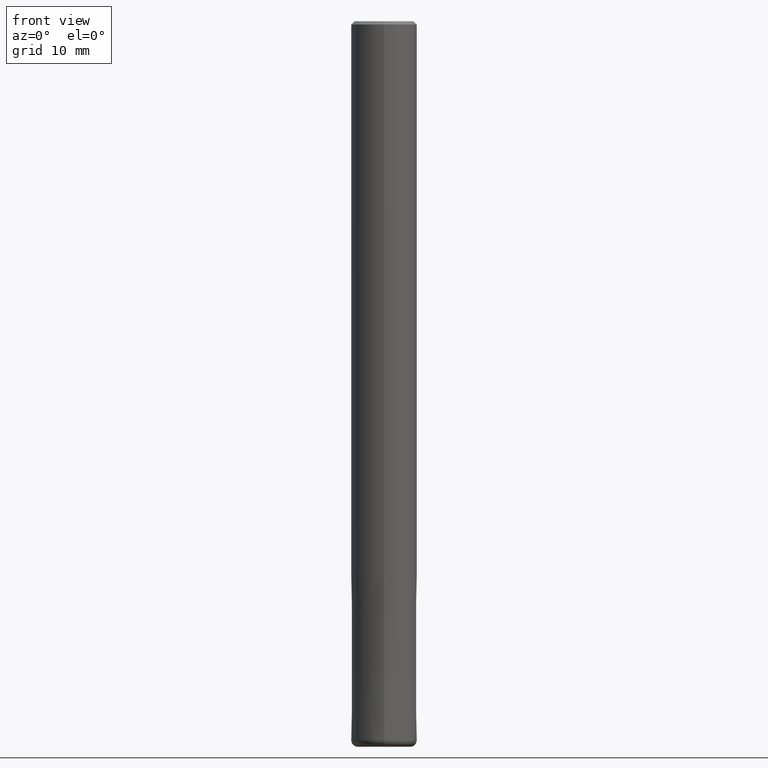
[diagram: clean part render]
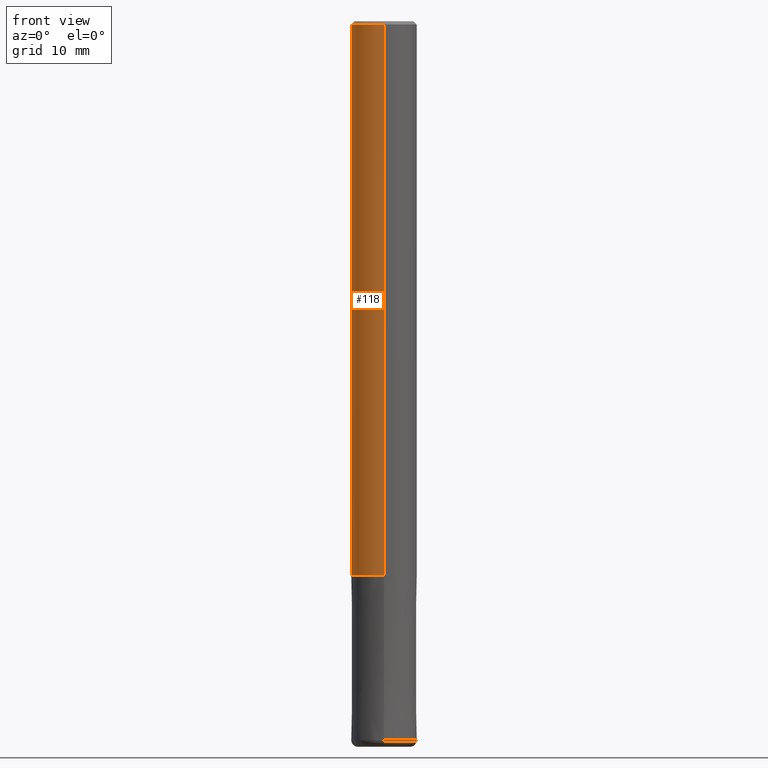
[diagram: same view with one face highlighted and labeled with its STEP entity id]
A machine part, front view. The second image highlights one B-rep face of the part: STEP entity #118.
In plain terms, the highlighted cylindrical surface (edge-blend (fillet) strip) has radius 5 mm, axis along (-0, -0, 1).
Its self-contained STEP definition (entity closure, byte-faithful):
#70=VERTEX_POINT('',#175);
#74=VERTEX_POINT('',#180);
#96=VERTEX_POINT('',#207);
#98=EDGE_CURVE('',#74,#144,#209,.T.);
#106=EDGE_CURVE('',#74,#70,#217,.T.);
#110=EDGE_CURVE('',#144,#96,#221,.T.);
#118=ADVANCED_FACE('',(#230),#231,.T.);
#120=EDGE_CURVE('',#96,#70,#233,.T.);
#144=VERTEX_POINT('',#260);
#175=CARTESIAN_POINT('',(0.0,5.0,-84.0));
#180=CARTESIAN_POINT('',(6.12303176911189E-016,-5.0,-84.0));
#207=CARTESIAN_POINT('',(0.0,5.0,-0.5));
#209=LINE('',#318,#319);
#217=CIRCLE('',#329,5.0);
#221=CIRCLE('',#336,5.0);
#230=FACE_OUTER_BOUND('',#346,.T.);
#231=CYLINDRICAL_SURFACE('',#347,5.0);
#233=LINE('',#350,#351);
#260=CARTESIAN_POINT('',(6.12303176911189E-016,-5.0,-0.5));
#318=CARTESIAN_POINT('',(6.12303176911189E-016,-5.0,-42.25));
#319=VECTOR('',#461,1.0);
#329=AXIS2_PLACEMENT_3D('',#465,#466,#467);
#336=AXIS2_PLACEMENT_3D('',#469,#470,#471);
#346=EDGE_LOOP('',(#484,#485,#486,#487));
#347=AXIS2_PLACEMENT_3D('',#488,#489,#490);
#350=CARTESIAN_POINT('',(-6.12303176911189E-016,5.0,-42.25));
#351=VECTOR('',#491,1.0);
#461=DIRECTION('',(-0.0,-0.0,1.0));
#465=CARTESIAN_POINT('',(0.0,0.0,-84.0));
#466=DIRECTION('',(0.0,0.0,-1.0));
#467=DIRECTION('',(0.0,1.0,0.0));
#469=CARTESIAN_POINT('',(0.0,0.0,-0.5));
#470=DIRECTION('',(0.0,0.0,-1.0));
#471=DIRECTION('',(0.0,1.0,0.0));
#484=ORIENTED_EDGE('',*,*,#120,.T.);
#485=ORIENTED_EDGE('',*,*,#106,.F.);
#486=ORIENTED_EDGE('',*,*,#98,.T.);
#487=ORIENTED_EDGE('',*,*,#110,.T.);
#488=CARTESIAN_POINT('',(0.0,0.0,-42.25));
#489=DIRECTION('',(-0.0,-0.0,1.0));
#490=DIRECTION('',(0.0,1.0,0.0));
#491=DIRECTION('',(0.0,0.0,-1.0));